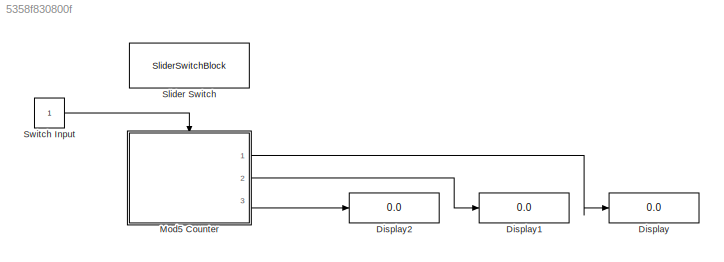
MODEL slx_5358f830800f
KIND model
CONFIG AbsTol = auto
CONFIG EnableMultiTasking = off
CONFIG FixedStep = auto
CONFIG MaxStep = auto
CONFIG MinStep = auto
CONFIG RelTol = 1e-3
CONFIG SampleTimeConstraint = Unconstrained
CONFIG SolverName = VariableStepAuto
CONFIG StartTime = 0.0
CONFIG StopTime = inf
BLOCK [Display] Display
  Decimation = 1
  Ports = [1]
BLOCK [Display] Display1
  Decimation = 1
  Ports = [1]
BLOCK [Display] Display2
  Decimation = 1
  Ports = [1]
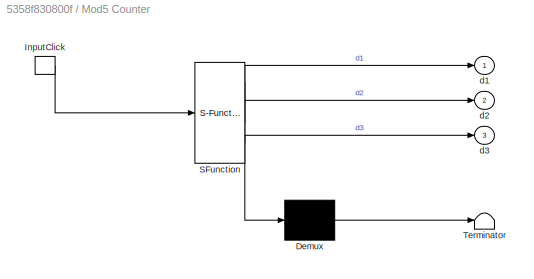
BLOCK [SubSystem] Mod5 Counter
  ErrorFcn = Stateflow.Translate.translate
  PermitHierarchicalResolution = ExplicitOnly
  Ports = [0, 3, 0, 1]
  RequestExecContextInheritance = off
  SFBlockType = Chart
  TreatAsAtomicUnit = on
BLOCK [Demux] Mod5 Counter/ Demux 
  Outputs = 1
  Ports = [1, 1]
BLOCK [S-Function] Mod5 Counter/ SFunction 
  EnableBusSupport = on
  FunctionName = sf_sfun
  PortCounts = [1 4]
  Ports = [1, 4]
  SFcnIsStateOwnerBlock = off
  SFunctionDeploymentMode = off
  Tag = Stateflow S-Function 3
BLOCK [Terminator] Mod5 Counter/ Terminator 
BLOCK [TriggerPort] Mod5 Counter/InputClick
  Ports = [0, 1]
  ShowOutputPort = on
  StatesWhenEnabling = held
  TriggerType = either
  VariantControl = (inherit)
BLOCK [Outport] Mod5 Counter/d1
BLOCK [Outport] Mod5 Counter/d2
  Port = 2
BLOCK [Outport] Mod5 Counter/d3
  Port = 3
BLOCK [SliderSwitchBlock] Slider Switch
BLOCK [Constant] Switch Input
LINE Mod5 Counter:1 -> Display:1
LINE Mod5 Counter:2 -> Display1:1
LINE Mod5 Counter:3 -> Display2:1
LINE Switch Input:1 -> Mod5 Counter:trigger
CHART Mod5 Counter states=18 transitions=18
  STATE_LABEL 'digit1'
  STATE_LABEL 'Zero\nen:\nd1=0;'
  STATE_LABEL 'One\nen:\nd1=1;'
  STATE_LABEL 'Two\nen:\nd1=2;'
  STATE_LABEL 'Four\nd1=4;'
  STATE_LABEL 'Three\nen:\nd1=3;'
  STATE_LABEL 'InputClick'
  STATE_LABEL 'InputClick'
  STATE_LABEL 'InputClick/{digit2.inc2}'
  STATE_LABEL 'InputClick'
  STATE_LABEL 'InputClick'
  STATE_LABEL 'Zero\nen:\nd1=0;'
  STATE_LABEL 'One\nen:\nd1=1;'
  STATE_LABEL 'Two\nen:\nd1=2;'
  STATE_LABEL 'Four\nd1=4;'
  STATE_LABEL 'Three\nen:\nd1=3;'
  STATE_LABEL 'digit2'
  STATE_LABEL 'Zero\nen:\nd2=0;'
  STATE_LABEL 'One\nen:\nd2=1;'
  STATE_LABEL 'Two\nen:\nd2=2;'
  STATE_LABEL 'Four\nen:\nd2=4;'
  STATE_LABEL 'Three\nen:\nd2=3;'
  STATE_LABEL 'inc2'
  STATE_LABEL 'inc2'
  STATE_LABEL 'inc2/{digit3.inc3}'
  STATE_LABEL 'inc2'
  STATE_LABEL 'inc2'
  STATE_LABEL 'Zero\nen:\nd2=0;'
  STATE_LABEL 'One\nen:\nd2=1;'
  STATE_LABEL 'Two\nen:\nd2=2;'
  STATE_LABEL 'Four\nen:\nd2=4;'
  STATE_LABEL 'Three\nen:\nd2=3;'
  STATE_LABEL 'digit3'
  STATE_LABEL 'Zero\nen:\nd3=0;'
  STATE_LABEL 'One\nen:\nd3=1;'
  STATE_LABEL 'Two\nen:\nd3=2;'
  STATE_LABEL 'Four\nen:\nd3=4;'
  STATE_LABEL 'Three\nen:\nd3=3;'
  STATE_LABEL 'inc3'
  STATE_LABEL 'inc3'
CHART  states=0 transitions=0
